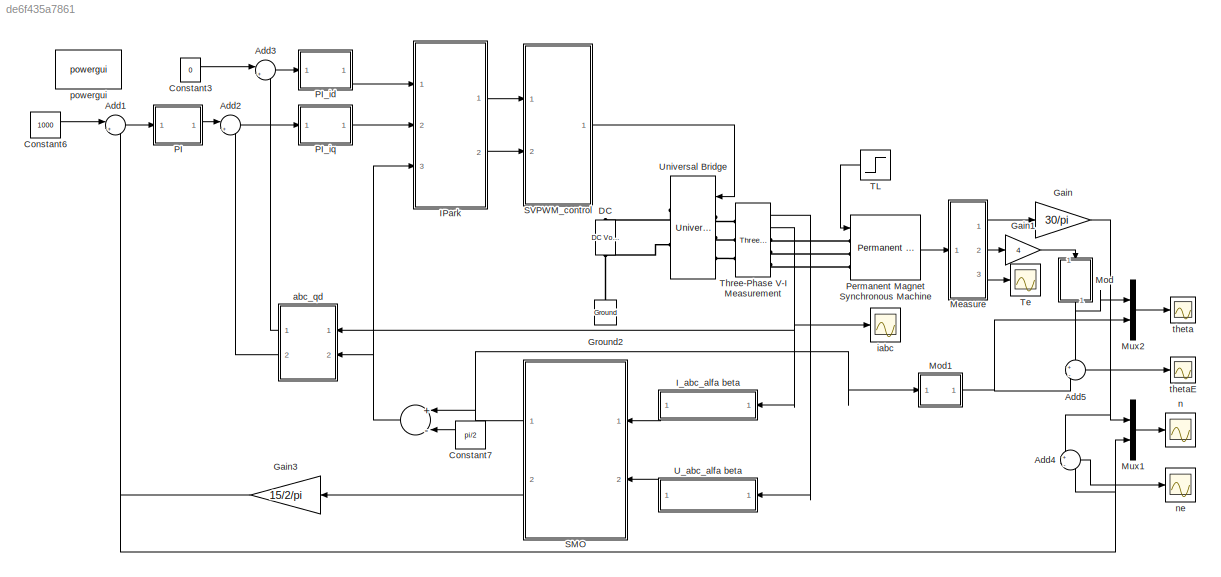
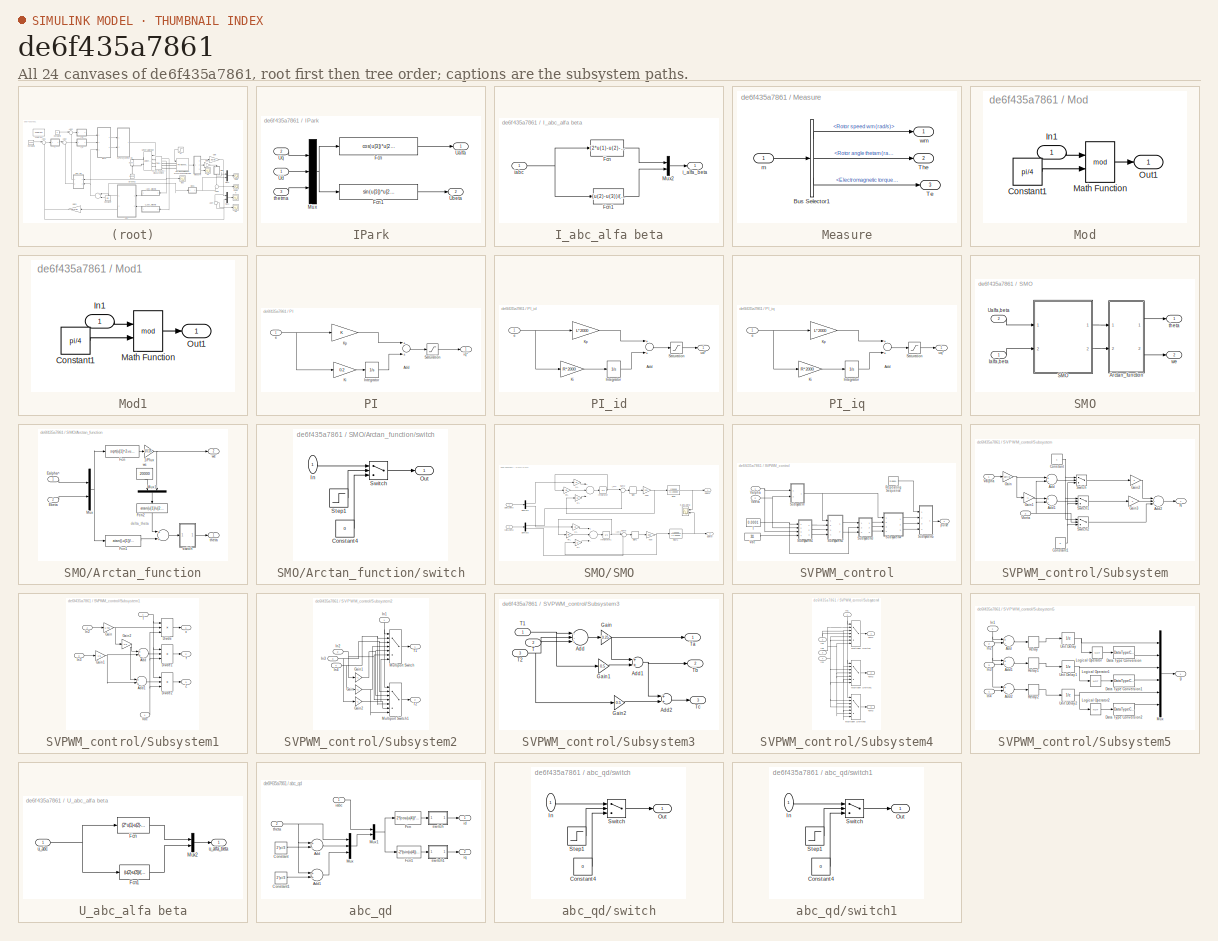
[diagram: thumbnail index - all 24 canvases of the model, root first then tree order]
MODEL slx_de6f435a7861
KIND model
CONFIG InitFcn = R = 2.8750;\nL = 8.5e-3;
BLOCK [Sum]   
  InputSameDT = off
  Inputs = +-
  OutDataTypeStr = Inherit: Inherit via internal rule
  Ports = [2, 1]
  SaturateOnIntegerOverflow = off
BLOCK [Sum] Add1
  IconShape = round
  InputSameDT = off
  Inputs = |+-
  OutDataTypeStr = Inherit: Inherit via internal rule
  Ports = [2, 1]
  SaturateOnIntegerOverflow = off
BLOCK [Sum] Add2
  IconShape = round
  InputSameDT = off
  Inputs = |+-
  OutDataTypeStr = Inherit: Inherit via internal rule
  Ports = [2, 1]
  SaturateOnIntegerOverflow = off
BLOCK [Sum] Add3
  IconShape = round
  InputSameDT = off
  Inputs = |+-
  OutDataTypeStr = Inherit: Inherit via internal rule
  Ports = [2, 1]
  SaturateOnIntegerOverflow = off
BLOCK [Sum] Add4
  IconShape = round
  InputSameDT = off
  Inputs = +|-
  OutDataTypeStr = Inherit: Inherit via internal rule
  Ports = [2, 1]
  SaturateOnIntegerOverflow = off
BLOCK [Sum] Add5
  IconShape = round
  InputSameDT = off
  Inputs = +|-
  OutDataTypeStr = Inherit: Inherit via internal rule
  Ports = [2, 1]
  SaturateOnIntegerOverflow = off
BLOCK [Constant] Constant3
  Value = 0
BLOCK [Constant] Constant6
  Value = 1000
BLOCK [Constant] Constant7
  Value = pi/2
BLOCK [Reference] DC   REF=powerlib/Electrical
Sources/DC Voltage Source
  Amplitude = 311
  Measurements = None
  Ports = [0, 0, 0, 0, 0, 1, 1]
  SourceBlock = powerlib/Electrical\nSources/DC Voltage Source
  SourceType = DC Voltage Source
BLOCK [Gain] Gain
  Gain = 30/pi
  OutDataTypeStr = Inherit: Inherit via internal rule
  ParamDataTypeStr = Inherit: Inherit via internal rule
  SaturateOnIntegerOverflow = off
BLOCK [Gain] Gain1
  Gain = 4
  OutDataTypeStr = Inherit: Inherit via internal rule
  ParamDataTypeStr = Inherit: Inherit via internal rule
  SaturateOnIntegerOverflow = off
BLOCK [Gain] Gain3
  Gain = 15/2/pi
  OutDataTypeStr = Inherit: Inherit via internal rule
  ParamDataTypeStr = Inherit: Inherit via internal rule
  SaturateOnIntegerOverflow = off
BLOCK [Reference] Ground2  REF=powerlib/Elements/Ground
  LConnTagsString = a
  Ports = [0, 0, 0, 0, 0, 1]
  SourceBlock = powerlib/Elements/Ground
  SourceType = Ground
BLOCK [SubSystem] IPark
  Ports = [3, 2]
  RequestExecContextInheritance = off
BLOCK [Fcn] IPark/Fcn
  Expr = cos(u[3])*u[2]-sin(u[3])*u[1]
BLOCK [Fcn] IPark/Fcn1
  Expr = sin(u[3])*u[2]+cos(u[3])*u[1]
BLOCK [Mux] IPark/Mux
  DisplayOption = bar
  Inputs = 3
  Ports = [3, 1]
BLOCK [Outport] IPark/Ualfa
  IconDisplay = Port number
BLOCK [Outport] IPark/Ubeta
  IconDisplay = Port number
  Port = 2
BLOCK [Inport] IPark/Ud
  IconDisplay = Port number
BLOCK [Inport] IPark/Uq
  IconDisplay = Port number
  Port = 2
BLOCK [Inport] IPark/thetma
  IconDisplay = Port number
  Port = 3
BLOCK [SubSystem] I_abc_alfa beta
  Ports = [1, 1]
  RequestExecContextInheritance = off
BLOCK [Fcn] I_abc_alfa beta/Fcn
  Expr = (2*u(1)-u(2)-u(3))/3
BLOCK [Fcn] I_abc_alfa beta/Fcn1
  Expr = (u(2)-u(3))/(3^(1/2))
BLOCK [Mux] I_abc_alfa beta/Mux2
  DisplayOption = bar
  Inputs = 2
  Ports = [2, 1]
BLOCK [Outport] I_abc_alfa beta/i_alfa_beta
  IconDisplay = Port number
BLOCK [Inport] I_abc_alfa beta/iabc
  IconDisplay = Port number
BLOCK [SubSystem] Measure
  Ports = [1, 3]
  RequestExecContextInheritance = off
BLOCK [BusSelector] Measure/Bus Selector1
  OutputSignals = Rotor speed wm (rad/s),Rotor angle thetam (rad),Electromagnetic torque Te (N*m)
  Ports = [1, 3]
BLOCK [Outport] Measure/Te
  IconDisplay = Port number
  Port = 3
BLOCK [Outport] Measure/The
  IconDisplay = Port number
  Port = 2
BLOCK [Inport] Measure/m
  IconDisplay = Port number
BLOCK [Outport] Measure/wm
  IconDisplay = Port number
BLOCK [SubSystem] Mod
  Ports = [1, 1]
  RequestExecContextInheritance = off
BLOCK [Constant] Mod/Constant1
  Value = pi/4
BLOCK [Inport] Mod/In1
  IconDisplay = Port number
BLOCK [Math] Mod/Math Function
  Operator = mod
  Ports = [2, 1]
BLOCK [Outport] Mod/Out1
  IconDisplay = Port number
BLOCK [SubSystem] Mod1
  Ports = [1, 1]
  RequestExecContextInheritance = off
BLOCK [Constant] Mod1/Constant1
  Value = pi/4
BLOCK [Inport] Mod1/In1
  IconDisplay = Port number
BLOCK [Math] Mod1/Math Function
  Operator = mod
  Ports = [2, 1]
BLOCK [Outport] Mod1/Out1
  IconDisplay = Port number
BLOCK [Mux] Mux1
  DisplayOption = bar
  Inputs = 2
  Ports = [2, 1]
BLOCK [Mux] Mux2
  DisplayOption = bar
  Inputs = 2
  Ports = [2, 1]
BLOCK [SubSystem] PI
  Ports = [1, 1]
  RequestExecContextInheritance = off
BLOCK [Sum] PI/Add
  InputSameDT = off
  OutDataTypeStr = Inherit: Inherit via internal rule
  Ports = [2, 1]
  SaturateOnIntegerOverflow = off
BLOCK [Integrator] PI/Integrator
  Ports = [1, 1]
BLOCK [Gain] PI/Ki
  Gain = 0.2
  OutDataTypeStr = Inherit: Inherit via internal rule
  ParamDataTypeStr = Inherit: Inherit via internal rule
  SaturateOnIntegerOverflow = off
BLOCK [Gain] PI/Kp
  OutDataTypeStr = Inherit: Inherit via internal rule
  ParamDataTypeStr = Inherit: Inherit via internal rule
  SaturateOnIntegerOverflow = off
BLOCK [Saturate] PI/Saturation
  InputPortMap = u0
  LowerLimit = -21
  Ports = [1, 1]
  UpperLimit = 21
BLOCK [Inport] PI/e
  IconDisplay = Port number
BLOCK [Outport] PI/iq*
  IconDisplay = Port number
BLOCK [SubSystem] PI_id
  Ports = [1, 1]
  RequestExecContextInheritance = off
BLOCK [Sum] PI_id/Add
  InputSameDT = off
  OutDataTypeStr = Inherit: Inherit via internal rule
  Ports = [2, 1]
  SaturateOnIntegerOverflow = off
BLOCK [Integrator] PI_id/Integrator
  Ports = [1, 1]
BLOCK [Gain] PI_id/Ki
  Gain = R*2000
  OutDataTypeStr = Inherit: Inherit via internal rule
  ParamDataTypeStr = Inherit: Inherit via internal rule
  SaturateOnIntegerOverflow = off
BLOCK [Gain] PI_id/Kp
  Gain = L*2000
  OutDataTypeStr = Inherit: Inherit via internal rule
  ParamDataTypeStr = Inherit: Inherit via internal rule
  SaturateOnIntegerOverflow = off
BLOCK [Saturate] PI_id/Saturation
  InputPortMap = u0
  LowerLimit = -350
  Ports = [1, 1]
  UpperLimit = 350
BLOCK [Inport] PI_id/e
  IconDisplay = Port number
BLOCK [Outport] PI_id/ud*
  IconDisplay = Port number
BLOCK [SubSystem] PI_iq
  Ports = [1, 1]
  RequestExecContextInheritance = off
BLOCK [Sum] PI_iq/Add
  InputSameDT = off
  OutDataTypeStr = Inherit: Inherit via internal rule
  Ports = [2, 1]
  SaturateOnIntegerOverflow = off
BLOCK [Integrator] PI_iq/Integrator
  Ports = [1, 1]
BLOCK [Gain] PI_iq/Ki
  Gain = R*2000
  OutDataTypeStr = Inherit: Inherit via internal rule
  ParamDataTypeStr = Inherit: Inherit via internal rule
  SaturateOnIntegerOverflow = off
BLOCK [Gain] PI_iq/Kp
  Gain = L*2000
  OutDataTypeStr = Inherit: Inherit via internal rule
  ParamDataTypeStr = Inherit: Inherit via internal rule
  SaturateOnIntegerOverflow = off
BLOCK [Saturate] PI_iq/Saturation
  InputPortMap = u0
  LowerLimit = -350
  Ports = [1, 1]
  UpperLimit = 350
BLOCK [Inport] PI_iq/e
  IconDisplay = Port number
BLOCK [Outport] PI_iq/uq*
  IconDisplay = Port number
BLOCK [Reference] Permanent Magnet Synchronous Machine  REF=powerlib/Machines/Permanent Magnet
Synchronous Machine
  Flat = 120
  Flux = 0.175
  FluxDistribution = Sinusoidal
  Inductance = 8.5e-3
  InitialConditions = [0,0, 0,0]
  InitialConditions5ph = [0 0 0 0 0 0]
  La = 0.000835
  MachineConstant = Flux linkage established by magnets (V.s)
  MeasurementBus = off
  Mechanical = [ 1e-3, 0,  4 ]
  MechanicalLoad = Torque Tm
  NbPhases = 3
  PolePairs = 4
  Ports = [1, 1, 0, 0, 0, 3]
  PresetModel = No
  RefAngle = 90 degrees behind phase A axis (modified Park)
  Resistance = 2.8750
  RotorType = Salient-pole
  ShowDetailedParameters = on
  SourceBlock = powerlib/Machines/Permanent Magnet\nSynchronous Machine
  SourceType = Permanent Magnet Synchronous Machine
  TorqueCst = 1.05
  TsBlock = -1
  TsPowergui = 0
  VoltageCst = 126.966
  dqInductances = [8.5e-3, 8.5e-3]
BLOCK [SubSystem] SMO
  Ports = [2, 2]
  RequestExecContextInheritance = off
BLOCK [SubSystem] SMO/Arctan_function
  Ports = [2, 2]
  RequestExecContextInheritance = off
BLOCK [Sum] SMO/Arctan_function/  
  InputSameDT = off
  OutDataTypeStr = Inherit: Inherit via internal rule
  Ports = [2, 1]
  SaturateOnIntegerOverflow = off
BLOCK [Gain] SMO/Arctan_function/1//Flux
  Gain = 1/0.175
  OutDataTypeStr = Inherit: Inherit via internal rule
  ParamDataTypeStr = Inherit: Inherit via internal rule
  SaturateOnIntegerOverflow = off
BLOCK [Inport] SMO/Arctan_function/Ealpha^
  IconDisplay = Port number
BLOCK [Inport] SMO/Arctan_function/Ebeta
  IconDisplay = Port number
  Port = 2
BLOCK [Fcn] SMO/Arctan_function/Fcn
  Expr = sqrt(u[1]^2+u[2]^2)
BLOCK [Fcn] SMO/Arctan_function/Fcn1
  Expr = atan((-u[1])/u[2])+(-u[2]+abs(u[2]))*pi/2/abs(u[2])
BLOCK [Fcn] SMO/Arctan_function/Fcn2
  Expr = atan(u[1]/u[2])
BLOCK [Mux] SMO/Arctan_function/Mux
  DisplayOption = bar
  Inputs = 2
  Ports = [2, 1]
BLOCK [Mux] SMO/Arctan_function/Mux1
  DisplayOption = bar
  Inputs = 2
  Ports = [2, 1]
BLOCK [SubSystem] SMO/Arctan_function/switch
  Ports = [1, 1]
  RequestExecContextInheritance = off
BLOCK [Constant] SMO/Arctan_function/switch/Constant4
  Value = 0
BLOCK [Inport] SMO/Arctan_function/switch/In
  IconDisplay = Port number
BLOCK [Outport] SMO/Arctan_function/switch/Out
  IconDisplay = Port number
BLOCK [Step] SMO/Arctan_function/switch/Step1
  SampleTime = 0
  Time = 0.001
BLOCK [Switch] SMO/Arctan_function/switch/Switch
  InputSameDT = off
  SaturateOnIntegerOverflow = off
  Threshold = 1
BLOCK [Outport] SMO/Arctan_function/theta
  IconDisplay = Port number
BLOCK [Constant] SMO/Arctan_function/wc
  Value = 20000
BLOCK [Outport] SMO/Arctan_function/we
  IconDisplay = Port number
  Port = 2
BLOCK [Inport] SMO/Ialfa,beta
  IconDisplay = Port number
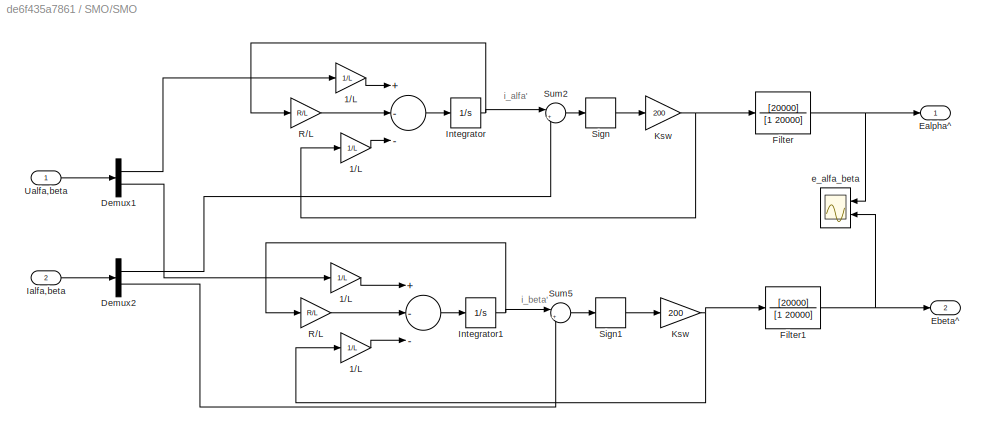
BLOCK [SubSystem] SMO/SMO
  Ports = [2, 2]
  RequestExecContextInheritance = off
BLOCK [Sum] SMO/SMO/ 
  InputSameDT = off
  Inputs = +--
  OutDataTypeStr = Inherit: Inherit via internal rule
  Ports = [3, 1]
  SaturateOnIntegerOverflow = off
BLOCK [Sum] SMO/SMO/   
  InputSameDT = off
  Inputs = +--
  OutDataTypeStr = Inherit: Inherit via internal rule
  Ports = [3, 1]
  SaturateOnIntegerOverflow = off
BLOCK [Gain] SMO/SMO/ 1//L
  Gain = 1/L
  OutDataTypeStr = Inherit: Inherit via internal rule
  ParamDataTypeStr = Inherit: Inherit via internal rule
  SaturateOnIntegerOverflow = off
BLOCK [Gain] SMO/SMO/ 1//L 
  Gain = 1/L
  OutDataTypeStr = Inherit: Inherit via internal rule
  ParamDataTypeStr = Inherit: Inherit via internal rule
  SaturateOnIntegerOverflow = off
BLOCK [Gain] SMO/SMO/1//L
  Gain = 1/L
  OutDataTypeStr = Inherit: Inherit via internal rule
  ParamDataTypeStr = Inherit: Inherit via internal rule
  SaturateOnIntegerOverflow = off
BLOCK [Gain] SMO/SMO/1//L 
  Gain = 1/L
  OutDataTypeStr = Inherit: Inherit via internal rule
  ParamDataTypeStr = Inherit: Inherit via internal rule
  SaturateOnIntegerOverflow = off
BLOCK [Demux] SMO/SMO/Demux1
  DisplayOption = bar
  Outputs = 2
  Ports = [1, 2]
BLOCK [Demux] SMO/SMO/Demux2
  DisplayOption = bar
  Outputs = 2
  Ports = [1, 2]
BLOCK [Outport] SMO/SMO/Ealpha^
  IconDisplay = Port number
BLOCK [Outport] SMO/SMO/Ebeta^
  IconDisplay = Port number
  Port = 2
BLOCK [TransferFcn] SMO/SMO/Filter
  Denominator = [1 20000]
  Numerator = [20000]
BLOCK [TransferFcn] SMO/SMO/Filter1
  Denominator = [1 20000]
  Numerator = [20000]
BLOCK [Inport] SMO/SMO/Ialfa,beta
  IconDisplay = Port number
  Port = 2
BLOCK [Integrator] SMO/SMO/Integrator
  Ports = [1, 1]
BLOCK [Integrator] SMO/SMO/Integrator1
  Ports = [1, 1]
BLOCK [Gain] SMO/SMO/Ksw
  Gain = 200
  OutDataTypeStr = Inherit: Inherit via internal rule
  ParamDataTypeStr = Inherit: Inherit via internal rule
  SaturateOnIntegerOverflow = off
BLOCK [Gain] SMO/SMO/Ksw 
  Gain = 200
  OutDataTypeStr = Inherit: Inherit via internal rule
  ParamDataTypeStr = Inherit: Inherit via internal rule
  SaturateOnIntegerOverflow = off
BLOCK [Gain] SMO/SMO/R//L
  Gain = R/L
  OutDataTypeStr = Inherit: Inherit via internal rule
  ParamDataTypeStr = Inherit: Inherit via internal rule
  SaturateOnIntegerOverflow = off
BLOCK [Gain] SMO/SMO/R//L 
  Gain = R/L
  OutDataTypeStr = Inherit: Inherit via internal rule
  ParamDataTypeStr = Inherit: Inherit via internal rule
  SaturateOnIntegerOverflow = off
BLOCK [Signum] SMO/SMO/Sign
  ZeroCross = off
BLOCK [Signum] SMO/SMO/Sign1
  ZeroCross = off
BLOCK [Sum] SMO/SMO/Sum2
  IconShape = round
  InputSameDT = off
  Inputs = |+-
  OutDataTypeStr = Inherit: Inherit via internal rule
  Ports = [2, 1]
  SaturateOnIntegerOverflow = off
BLOCK [Sum] SMO/SMO/Sum5
  IconShape = round
  InputSameDT = off
  Inputs = |+-
  OutDataTypeStr = Inherit: Inherit via internal rule
  Ports = [2, 1]
  SaturateOnIntegerOverflow = off
BLOCK [Inport] SMO/SMO/Ualfa,beta
  IconDisplay = Port number
BLOCK [Scope] SMO/SMO/e_alfa_beta
  DataFormat = Structure
  Floating = off
  LimitDataPoints = off
  NumInputPorts = 2
  Ports = [2]
  SampleTime = 0
  SaveName = ScopeData14
  ShowLegends = off
  TimeRange = 0.06
  YMax = 95~-40
  YMin = -5~-125
  ZoomMode = xonly
BLOCK [Inport] SMO/Ualfa,beta
  IconDisplay = Port number
  Port = 2
BLOCK [Outport] SMO/theta
  IconDisplay = Port number
BLOCK [Outport] SMO/we
  IconDisplay = Port number
  Port = 2
BLOCK [SubSystem] SVPWM_control
  Ports = [2, 1]
  RequestExecContextInheritance = off
BLOCK [Reference] SVPWM_control/Repeating Sequence  REF=simulink/Sources/Repeating
Sequence
  Ports = [0, 1]
  SourceBlock = simulink/Sources/Repeating\nSequence
  SourceType = Repeating table
  rep_seq_t = [0 0.0001 0.0002]
  rep_seq_y = [0 0.0001 0]
BLOCK [SubSystem] SVPWM_control/Subsystem
  Ports = [2, 1]
  RequestExecContextInheritance = off
BLOCK [Sum] SVPWM_control/Subsystem/Add
  InputSameDT = off
  Inputs = +-
  OutDataTypeStr = Inherit: Inherit via internal rule
  Ports = [2, 1]
  SaturateOnIntegerOverflow = off
BLOCK [Sum] SVPWM_control/Subsystem/Add1
  InputSameDT = off
  Inputs = +-
  OutDataTypeStr = Inherit: Inherit via internal rule
  Ports = [2, 1]
  SaturateOnIntegerOverflow = off
BLOCK [Sum] SVPWM_control/Subsystem/Add2
  InputSameDT = off
  Inputs = +++
  OutDataTypeStr = Inherit: Inherit via internal rule
  Ports = [3, 1]
  SaturateOnIntegerOverflow = off
BLOCK [Constant] SVPWM_control/Subsystem/Constant
BLOCK [Constant] SVPWM_control/Subsystem/Constant1
  Value = 0
BLOCK [Gain] SVPWM_control/Subsystem/Gain
  Gain = sqrt(3)
  OutDataTypeStr = Inherit: Inherit via internal rule
  ParamDataTypeStr = Inherit: Inherit via internal rule
  SaturateOnIntegerOverflow = off
BLOCK [Gain] SVPWM_control/Subsystem/Gain1
  Gain = -1
  OutDataTypeStr = Inherit: Inherit via internal rule
  ParamDataTypeStr = Inherit: Inherit via internal rule
  SaturateOnIntegerOverflow = off
BLOCK [Gain] SVPWM_control/Subsystem/Gain2
  Gain = 2
  OutDataTypeStr = Inherit: Inherit via internal rule
  ParamDataTypeStr = Inherit: Inherit via internal rule
  SaturateOnIntegerOverflow = off
BLOCK [Gain] SVPWM_control/Subsystem/Gain3
  Gain = 4
  OutDataTypeStr = Inherit: Inherit via internal rule
  ParamDataTypeStr = Inherit: Inherit via internal rule
  SaturateOnIntegerOverflow = off
BLOCK [Outport] SVPWM_control/Subsystem/N
  IconDisplay = Port number
BLOCK [Switch] SVPWM_control/Subsystem/Switch
  Criteria = u2 > Threshold
  InputSameDT = off
  SaturateOnIntegerOverflow = off
BLOCK [Switch] SVPWM_control/Subsystem/Switch1
  Criteria = u2 > Threshold
  InputSameDT = off
  SaturateOnIntegerOverflow = off
BLOCK [Switch] SVPWM_control/Subsystem/Switch2
  Criteria = u2 > Threshold
  InputSameDT = off
  SaturateOnIntegerOverflow = off
BLOCK [Inport] SVPWM_control/Subsystem/Valpha
  IconDisplay = Port number
BLOCK [Inport] SVPWM_control/Subsystem/Vbeta
  IconDisplay = Port number
  Port = 2
BLOCK [SubSystem] SVPWM_control/Subsystem1
  Ports = [4, 3]
  RequestExecContextInheritance = off
BLOCK [Sum] SVPWM_control/Subsystem1/Add
  InputSameDT = off
  OutDataTypeStr = Inherit: Inherit via internal rule
  Ports = [2, 1]
  SaturateOnIntegerOverflow = off
BLOCK [Sum] SVPWM_control/Subsystem1/Add1
  InputSameDT = off
  Inputs = +-
  OutDataTypeStr = Inherit: Inherit via internal rule
  Ports = [2, 1]
  SaturateOnIntegerOverflow = off
BLOCK [Product] SVPWM_control/Subsystem1/Divide
  InputSameDT = off
  Inputs = **/
  OutDataTypeStr = Inherit: Inherit via internal rule
  Ports = [3, 1]
  RndMeth = Floor
  SaturateOnIntegerOverflow = off
BLOCK [Product] SVPWM_control/Subsystem1/Divide1
  InputSameDT = off
  Inputs = **/
  OutDataTypeStr = Inherit: Inherit via internal rule
  Ports = [3, 1]
  RndMeth = Floor
  SaturateOnIntegerOverflow = off
BLOCK [Product] SVPWM_control/Subsystem1/Divide2
  InputSameDT = off
  Inputs = **/
  OutDataTypeStr = Inherit: Inherit via internal rule
  Ports = [3, 1]
  RndMeth = Floor
  SaturateOnIntegerOverflow = off
BLOCK [Gain] SVPWM_control/Subsystem1/Gain
  Gain = 1.732
  OutDataTypeStr = Inherit: Inherit via internal rule
  ParamDataTypeStr = Inherit: Inherit via internal rule
  SaturateOnIntegerOverflow = off
BLOCK [Gain] SVPWM_control/Subsystem1/Gain1
  Gain = 1.5
  OutDataTypeStr = Inherit: Inherit via internal rule
  ParamDataTypeStr = Inherit: Inherit via internal rule
  SaturateOnIntegerOverflow = off
BLOCK [Gain] SVPWM_control/Subsystem1/Gain2
  Gain = 0.5
  OutDataTypeStr = Inherit: Inherit via internal rule
  ParamDataTypeStr = Inherit: Inherit via internal rule
  SaturateOnIntegerOverflow = off
BLOCK [Inport] SVPWM_control/Subsystem1/In2
  IconDisplay = Port number
  Port = 2
BLOCK [Inport] SVPWM_control/Subsystem1/In3
  IconDisplay = Port number
  Port = 3
BLOCK [Inport] SVPWM_control/Subsystem1/T
  IconDisplay = Port number
BLOCK [Inport] SVPWM_control/Subsystem1/Vdc
  IconDisplay = Port number
  Port = 4
BLOCK [Outport] SVPWM_control/Subsystem1/Y
  IconDisplay = Port number
  Port = 2
BLOCK [Outport] SVPWM_control/Subsystem1/Z
  IconDisplay = Port number
  Port = 3
BLOCK [Outport] SVPWM_control/Subsystem1/x
  IconDisplay = Port number
BLOCK [SubSystem] SVPWM_control/Subsystem2
  Ports = [4, 2]
  RequestExecContextInheritance = off
BLOCK [Gain] SVPWM_control/Subsystem2/Gain
  Gain = -1
  OutDataTypeStr = Inherit: Inherit via internal rule
  ParamDataTypeStr = Inherit: Inherit via internal rule
  SaturateOnIntegerOverflow = off
BLOCK [Gain] SVPWM_control/Subsystem2/Gain1
  Gain = -1
  OutDataTypeStr = Inherit: Inherit via internal rule
  ParamDataTypeStr = Inherit: Inherit via internal rule
  SaturateOnIntegerOverflow = off
BLOCK [Gain] SVPWM_control/Subsystem2/Gain2
  Gain = -1
  OutDataTypeStr = Inherit: Inherit via internal rule
  ParamDataTypeStr = Inherit: Inherit via internal rule
  SaturateOnIntegerOverflow = off
BLOCK [Inport] SVPWM_control/Subsystem2/In1
  IconDisplay = Port number
BLOCK [Inport] SVPWM_control/Subsystem2/In2
  IconDisplay = Port number
  Port = 2
BLOCK [Inport] SVPWM_control/Subsystem2/In3
  IconDisplay = Port number
  Port = 3
BLOCK [Inport] SVPWM_control/Subsystem2/In4
  IconDisplay = Port number
  Port = 4
BLOCK [MultiPortSwitch] SVPWM_control/Subsystem2/Multiport Switch
  InputSameDT = off
  Inputs = 6
  Ports = [7, 1]
  SaturateOnIntegerOverflow = off
BLOCK [MultiPortSwitch] SVPWM_control/Subsystem2/Multiport Switch1
  InputSameDT = off
  Inputs = 6
  Ports = [7, 1]
  SaturateOnIntegerOverflow = off
BLOCK [Outport] SVPWM_control/Subsystem2/T1
  IconDisplay = Port number
BLOCK [Outport] SVPWM_control/Subsystem2/T2
  IconDisplay = Port number
  Port = 2
BLOCK [SubSystem] SVPWM_control/Subsystem3
  Ports = [3, 3]
  RequestExecContextInheritance = off
BLOCK [Sum] SVPWM_control/Subsystem3/Add
  InputSameDT = off
  Inputs = --+
  OutDataTypeStr = Inherit: Inherit via internal rule
  Ports = [3, 1]
  SaturateOnIntegerOverflow = off
BLOCK [Sum] SVPWM_control/Subsystem3/Add1
  InputSameDT = off
  OutDataTypeStr = Inherit: Inherit via internal rule
  Ports = [2, 1]
  SaturateOnIntegerOverflow = off
BLOCK [Sum] SVPWM_control/Subsystem3/Add2
  InputSameDT = off
  OutDataTypeStr = Inherit: Inherit via internal rule
  Ports = [2, 1]
  SaturateOnIntegerOverflow = off
BLOCK [Gain] SVPWM_control/Subsystem3/Gain
  Gain = 0.25
  OutDataTypeStr = Inherit: Inherit via internal rule
  ParamDataTypeStr = Inherit: Inherit via internal rule
  SaturateOnIntegerOverflow = off
BLOCK [Gain] SVPWM_control/Subsystem3/Gain1
  Gain = 0.5
  OutDataTypeStr = Inherit: Inherit via internal rule
  ParamDataTypeStr = Inherit: Inherit via internal rule
  SaturateOnIntegerOverflow = off
BLOCK [Gain] SVPWM_control/Subsystem3/Gain2
  Gain = 0.5
  OutDataTypeStr = Inherit: Inherit via internal rule
  ParamDataTypeStr = Inherit: Inherit via internal rule
  SaturateOnIntegerOverflow = off
BLOCK [Inport] SVPWM_control/Subsystem3/T
  IconDisplay = Port number
  Port = 2
BLOCK [Inport] SVPWM_control/Subsystem3/T1
  IconDisplay = Port number
BLOCK [Inport] SVPWM_control/Subsystem3/T2
  IconDisplay = Port number
  Port = 3
BLOCK [Outport] SVPWM_control/Subsystem3/Ta
  IconDisplay = Port number
BLOCK [Outport] SVPWM_control/Subsystem3/Tb
  IconDisplay = Port number
  Port = 2
BLOCK [Outport] SVPWM_control/Subsystem3/Tc
  IconDisplay = Port number
  Port = 3
BLOCK [SubSystem] SVPWM_control/Subsystem4
  Ports = [4, 3]
  RequestExecContextInheritance = off
BLOCK [Inport] SVPWM_control/Subsystem4/In1
  IconDisplay = Port number
BLOCK [Inport] SVPWM_control/Subsystem4/In2
  IconDisplay = Port number
  Port = 2
BLOCK [Inport] SVPWM_control/Subsystem4/In3
  IconDisplay = Port number
  Port = 3
BLOCK [Inport] SVPWM_control/Subsystem4/In4
  IconDisplay = Port number
  Port = 4
BLOCK [MultiPortSwitch] SVPWM_control/Subsystem4/Multiport Switch
  InputSameDT = off
  Inputs = 6
  Ports = [7, 1]
  SaturateOnIntegerOverflow = off
BLOCK [MultiPortSwitch] SVPWM_control/Subsystem4/Multiport Switch1
  InputSameDT = off
  Inputs = 6
  Ports = [7, 1]
  SaturateOnIntegerOverflow = off
BLOCK [MultiPortSwitch] SVPWM_control/Subsystem4/Multiport Switch2
  InputSameDT = off
  Inputs = 6
  Ports = [7, 1]
  SaturateOnIntegerOverflow = off
BLOCK [Outport] SVPWM_control/Subsystem4/Tcm1
  IconDisplay = Port number
BLOCK [Outport] SVPWM_control/Subsystem4/Tcm2
  IconDisplay = Port number
  Port = 2
BLOCK [Outport] SVPWM_control/Subsystem4/Tcm3
  IconDisplay = Port number
  Port = 3
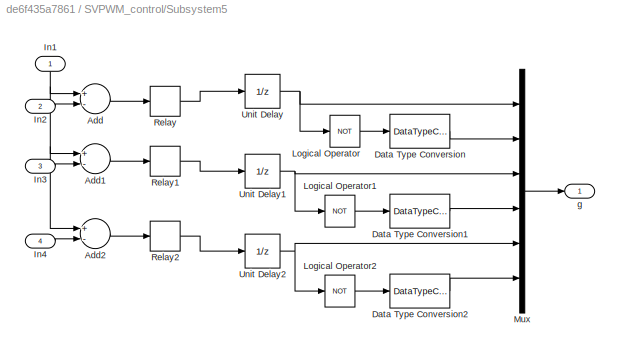
BLOCK [SubSystem] SVPWM_control/Subsystem5
  Ports = [4, 1]
  RequestExecContextInheritance = off
BLOCK [Sum] SVPWM_control/Subsystem5/Add
  InputSameDT = off
  Inputs = +-
  OutDataTypeStr = Inherit: Inherit via internal rule
  Ports = [2, 1]
  SaturateOnIntegerOverflow = off
BLOCK [Sum] SVPWM_control/Subsystem5/Add1
  InputSameDT = off
  Inputs = +-
  OutDataTypeStr = Inherit: Inherit via internal rule
  Ports = [2, 1]
  SaturateOnIntegerOverflow = off
BLOCK [Sum] SVPWM_control/Subsystem5/Add2
  InputSameDT = off
  Inputs = +-
  OutDataTypeStr = Inherit: Inherit via internal rule
  Ports = [2, 1]
  SaturateOnIntegerOverflow = off
BLOCK [DataTypeConversion] SVPWM_control/Subsystem5/Data Type Conversion
  OutDataTypeStr = double
  RndMeth = Floor
  SaturateOnIntegerOverflow = off
BLOCK [DataTypeConversion] SVPWM_control/Subsystem5/Data Type Conversion1
  OutDataTypeStr = double
  RndMeth = Floor
  SaturateOnIntegerOverflow = off
BLOCK [DataTypeConversion] SVPWM_control/Subsystem5/Data Type Conversion2
  OutDataTypeStr = double
  RndMeth = Floor
  SaturateOnIntegerOverflow = off
BLOCK [Inport] SVPWM_control/Subsystem5/In1
  IconDisplay = Port number
BLOCK [Inport] SVPWM_control/Subsystem5/In2
  IconDisplay = Port number
  Port = 2
BLOCK [Inport] SVPWM_control/Subsystem5/In3
  IconDisplay = Port number
  Port = 3
BLOCK [Inport] SVPWM_control/Subsystem5/In4
  IconDisplay = Port number
  Port = 4
BLOCK [Logic] SVPWM_control/Subsystem5/Logical Operator
  AllPortsSameDT = off
  Operator = NOT
  OutDataTypeStr = boolean
  Ports = [1, 1]
BLOCK [Logic] SVPWM_control/Subsystem5/Logical Operator1
  AllPortsSameDT = off
  Operator = NOT
  OutDataTypeStr = boolean
  Ports = [1, 1]
BLOCK [Logic] SVPWM_control/Subsystem5/Logical Operator2
  AllPortsSameDT = off
  Operator = NOT
  OutDataTypeStr = boolean
  Ports = [1, 1]
BLOCK [Mux] SVPWM_control/Subsystem5/Mux
  DisplayOption = bar
  Inputs = 6
  Ports = [6, 1]
BLOCK [Relay] SVPWM_control/Subsystem5/Relay
  OffSwitchValue = -eps
BLOCK [Relay] SVPWM_control/Subsystem5/Relay1
  OffSwitchValue = -eps
BLOCK [Relay] SVPWM_control/Subsystem5/Relay2
  OffSwitchValue = -eps
BLOCK [UnitDelay] SVPWM_control/Subsystem5/Unit Delay
  SampleTime = -1
BLOCK [UnitDelay] SVPWM_control/Subsystem5/Unit Delay1
  SampleTime = -1
BLOCK [UnitDelay] SVPWM_control/Subsystem5/Unit Delay2
  SampleTime = -1
BLOCK [Outport] SVPWM_control/Subsystem5/g
  IconDisplay = Port number
BLOCK [Constant] SVPWM_control/T
  Value = 0.0001
BLOCK [Inport] SVPWM_control/Valpha
  IconDisplay = Port number
BLOCK [Inport] SVPWM_control/Vbeta
  IconDisplay = Port number
  Port = 2
BLOCK [Constant] SVPWM_control/Vdc
  Value = 311
BLOCK [Outport] SVPWM_control/pulse
  IconDisplay = Port number
BLOCK [Step] TL
  After = 0
  SampleTime = 0
  Time = 0.05
BLOCK [Scope] Te
  DataFormat = StructureWithTime
  Floating = off
  LimitDataPoints = off
  NumInputPorts = 1
  Ports = [1]
  SampleTime = 0
  SaveName = Te
  SaveToWorkspace = on
  ShowLegends = off
  YMax = 3.25
  YMin = -2
BLOCK [Reference] Three-Phase V-I Measurement  REF=powerlib/Measurements/Three-Phase
V-I Measurement
  CurrentMeasurement = yes
  Ipu = off
  LabelI = Iabc
  LabelV = Vabc
  OutputType = Complex
  PSBequivalent = 0
  Pbase = 100e6
  PhasorSimulation = off
  Ports = [0, 2, 0, 0, 0, 3, 3]
  SetLabelI = off
  SetLabelV = off
  SourceBlock = powerlib/Measurements/Three-Phase\nV-I Measurement
  SourceType = Three-Phase VI Measurement
  Vbase = 500e3
  VoltageMeasurement = phase-to-ground
  Vpu = off
  VpuLL = off
BLOCK [SubSystem] U_abc_alfa beta
  Ports = [1, 1]
  RequestExecContextInheritance = off
BLOCK [Fcn] U_abc_alfa beta/Fcn
  Expr = (2*u(1)-u(2)-u(3))/3
BLOCK [Fcn] U_abc_alfa beta/Fcn1
  Expr = (u(2)-u(3))/(3^(1/2))
BLOCK [Mux] U_abc_alfa beta/Mux2
  DisplayOption = bar
  Inputs = 2
  Ports = [2, 1]
BLOCK [Inport] U_abc_alfa beta/u_abc
  IconDisplay = Port number
BLOCK [Outport] U_abc_alfa beta/u_alfa_beta
  IconDisplay = Port number
BLOCK [Reference] Universal Bridge  REF=powerlib/Power
Electronics/Universal Bridge
  Arms = 3
  Device = IGBT / Diodes
  ForwardVoltage = 0
  ForwardVoltages = [  0  0  ]
  GTOparameters = [ 10e-6 , 20e-6 ]
  IGBTparameters = [ 1e-6 , 2e-6 ]
  Lon = 0
  Measurements = None
  Measurements_2 = None
  Ports = [1, 0, 0, 0, 0, 3, 2]
  Ron = 1e-3
  SnubberCapacitance = inf
  SnubberResistance = 1e5
  SourceBlock = powerlib/Power\nElectronics/Universal Bridge
  SourceType = Universal Bridge
  converterType = Rectifier
BLOCK [SubSystem] abc_qd
  Ports = [2, 2]
  RequestExecContextInheritance = off
BLOCK [Sum] abc_qd/Add
  InputSameDT = off
  Inputs = +-
  OutDataTypeStr = Inherit: Inherit via internal rule
  Ports = [2, 1]
  SaturateOnIntegerOverflow = off
BLOCK [Sum] abc_qd/Add1
  InputSameDT = off
  OutDataTypeStr = Inherit: Inherit via internal rule
  Ports = [2, 1]
  SaturateOnIntegerOverflow = off
BLOCK [Constant] abc_qd/Constant
  Value = 2*pi/3
BLOCK [Constant] abc_qd/Constant1
  Value = 2*pi/3
BLOCK [Fcn] abc_qd/Fcn
  Expr = 2*(cos(u(4))*u(1)+cos(u(5))*u(2)+cos(u(6))*u(3))/3
BLOCK [Fcn] abc_qd/Fcn1
  Expr = -2*(sin(u(4))*u(1)+sin(u(5))*u(2)+sin(u(6))*u(3))/3
BLOCK [Mux] abc_qd/Mux
  DisplayOption = bar
  Inputs = 3
  Ports = [3, 1]
BLOCK [Mux] abc_qd/Mux1
  DisplayOption = bar
  Inputs = 2
  Ports = [2, 1]
BLOCK [Inport] abc_qd/iabc
  IconDisplay = Port number
BLOCK [Outport] abc_qd/id
  IconDisplay = Port number
BLOCK [Outport] abc_qd/iq
  IconDisplay = Port number
  Port = 2
BLOCK [SubSystem] abc_qd/switch
  Ports = [1, 1]
  RequestExecContextInheritance = off
BLOCK [Constant] abc_qd/switch/Constant4
  Value = 0
BLOCK [Inport] abc_qd/switch/In
  IconDisplay = Port number
BLOCK [Outport] abc_qd/switch/Out
  IconDisplay = Port number
BLOCK [Step] abc_qd/switch/Step1
  SampleTime = 0
  Time = 0.001
BLOCK [Switch] abc_qd/switch/Switch
  InputSameDT = off
  SaturateOnIntegerOverflow = off
  Threshold = 1
BLOCK [SubSystem] abc_qd/switch1
  Ports = [1, 1]
  RequestExecContextInheritance = off
BLOCK [Constant] abc_qd/switch1/Constant4
  Value = 0
BLOCK [Inport] abc_qd/switch1/In
  IconDisplay = Port number
BLOCK [Outport] abc_qd/switch1/Out
  IconDisplay = Port number
BLOCK [Step] abc_qd/switch1/Step1
  SampleTime = 0
  Time = 0.001
BLOCK [Switch] abc_qd/switch1/Switch
  InputSameDT = off
  SaturateOnIntegerOverflow = off
  Threshold = 1
BLOCK [Inport] abc_qd/theta
  IconDisplay = Port number
  Port = 2
BLOCK [Scope] iabc
  DataFormat = StructureWithTime
  Floating = off
  LimitDataPoints = off
  NumInputPorts = 1
  Ports = [1]
  SampleTime = 0
  SaveName = iabc
  SaveToWorkspace = on
  ShowLegends = off
  YMax = 20
  YMin = -15
  ZoomMode = yonly
BLOCK [Scope] n
  DataFormat = StructureWithTime
  Floating = off
  LimitDataPoints = off
  NumInputPorts = 1
  Ports = [1]
  SampleTime = 0
  SaveName = wm
  SaveToWorkspace = on
  ShowLegends = off
  YMax = 700
  YMin = -100
  ZoomMode = yonly
BLOCK [Scope] ne
  DataFormat = StructureWithTime
  Floating = off
  LimitDataPoints = off
  NumInputPorts = 1
  Ports = [1]
  SampleTime = 0
  SaveName = wme
  SaveToWorkspace = on
  ShowLegends = off
  YMax = 20
  YMin = -15
  ZoomMode = yonly
BLOCK [Reference] powergui  REF=powerlib/powergui
  DisableRonSwitches = off
  DisableSnubberDevices = off
  DisableVfSwitches = off
  DisplayEquations = off
  DisplayStyle = 1
  EnableUseOfTLC = off
  ErrMax = 1e-4
  Frange = [0:2:500]
  FreqAxis = off
  FunctionMessages = off
  HookPort = off
  Interpol = off
  Iterations = 50
  MaxFrequency = 1000
  Pbase = 100e6
  Ports = []
  Priority = 1
  ResistiveCurrentMeasurement = off
  RestoreLinks = warning
  RmsSteady = 1
  SPID = off
  SampleTime = 50e-6
  ShowGrid = off
  SolverType = Tustin/Backward Euler (TBE)
  SourceBlock = powerlib/powergui
  SourceType = PSB option menu block
  StartTime = 0.0
  SwTol = 0
  Ts = 100
  UnitsV = kV
  UnitsW = MW
  UserDataPersistent = on
  Xlog = on
  Ylog = off
  ZoomFFT = off
  cycles = 1
  display = off
  echomessages = off
  frequency = 60
  frequencyindice = 0
  frequencyindicesteady = 1
  fundamental = 60
  methode = off
  save = off
  structure = 0
  variable = ZData
  x0status = blocks
BLOCK [Scope] theta
  DataFormat = StructureWithTime
  Floating = off
  LimitDataPoints = off
  NumInputPorts = 1
  Ports = [1]
  SampleTime = 0
  SaveName = The
  SaveToWorkspace = on
  ShowLegends = off
  TimeRange = 0.1
  YMax = 20
  YMin = -0.0127013
  ZoomMode = yonly
BLOCK [Scope] thetaE
  DataFormat = StructureWithTime
  Floating = off
  LimitDataPoints = off
  NumInputPorts = 1
  Ports = [1]
  SampleTime = 0
  SaveName = Thee
  SaveToWorkspace = on
  ShowLegends = off
  TimeRange = 0.1
  YMax = 0.5
  YMin = -3.5
  ZoomMode = yonly
ANNOTATION SMO/Arctan_function: delta_theta
ANNOTATION SMO/SMO: i_alfa'
ANNOTATION SMO/SMO: i_beta'
NET   :1 -> IPark:3, abc_qd:2
LINE Add1:1 -> PI:1
LINE Add2:1 -> PI_iq:1
LINE Add3:1 -> PI_id:1
LINE Add4:1 -> ne:1
LINE Add5:1 -> thetaE:1
LINE Constant3:1 -> Add3:1
LINE Constant6:1 -> Add1:1
LINE Constant7:1 ->   :2
LINE Gain1:1 -> Mod:1
NET Gain3:1 -> Add1:2, Add4:2, Mux1:2
NET Gain:1 -> Add4:1, Mux1:1
LINE IPark/Fcn1:1 -> IPark/Ubeta:1
LINE IPark/Fcn:1 -> IPark/Ualfa:1
NET IPark/Mux:1 -> IPark/Fcn1:1, IPark/Fcn:1
LINE IPark/Ud:1 -> IPark/Mux:2
LINE IPark/Uq:1 -> IPark/Mux:1
LINE IPark/thetma:1 -> IPark/Mux:3
LINE IPark:1 -> SVPWM_control:1
LINE IPark:2 -> SVPWM_control:2
LINE I_abc_alfa beta/Fcn1:1 -> I_abc_alfa beta/Mux2:2
LINE I_abc_alfa beta/Fcn:1 -> I_abc_alfa beta/Mux2:1
LINE I_abc_alfa beta/Mux2:1 -> I_abc_alfa beta/i_alfa_beta:1
NET I_abc_alfa beta/iabc:1 -> I_abc_alfa beta/Fcn1:1, I_abc_alfa beta/Fcn:1
LINE I_abc_alfa beta:1 -> SMO:1
LINE Measure/Bus Selector1:1 -> Measure/wm:1
LINE Measure/Bus Selector1:2 -> Measure/The:1
LINE Measure/Bus Selector1:3 -> Measure/Te:1
LINE Measure/m:1 -> Measure/Bus Selector1:1
LINE Measure:1 -> Gain:1
LINE Measure:2 -> Gain1:1
LINE Measure:3 -> Te:1
LINE Mod/Constant1:1 -> Mod/Math Function:2
LINE Mod/In1:1 -> Mod/Math Function:1
LINE Mod/Math Function:1 -> Mod/Out1:1
LINE Mod1/Constant1:1 -> Mod1/Math Function:2
LINE Mod1/In1:1 -> Mod1/Math Function:1
LINE Mod1/Math Function:1 -> Mod1/Out1:1
NET Mod1:1 -> Add5:2, Mux2:2
NET Mod:1 -> Add5:1, Mux2:1
LINE Mux1:1 -> n:1
LINE Mux2:1 -> theta:1
LINE PI/Add:1 -> PI/Saturation:1
LINE PI/Integrator:1 -> PI/Add:2
LINE PI/Ki:1 -> PI/Integrator:1
LINE PI/Kp:1 -> PI/Add:1
LINE PI/Saturation:1 -> PI/iq*:1
NET PI/e:1 -> PI/Ki:1, PI/Kp:1
LINE PI:1 -> Add2:1
LINE PI_id/Add:1 -> PI_id/Saturation:1
LINE PI_id/Integrator:1 -> PI_id/Add:2
LINE PI_id/Ki:1 -> PI_id/Integrator:1
LINE PI_id/Kp:1 -> PI_id/Add:1
LINE PI_id/Saturation:1 -> PI_id/ud*:1
NET PI_id/e:1 -> PI_id/Ki:1, PI_id/Kp:1
LINE PI_id:1 -> IPark:1
LINE PI_iq/Add:1 -> PI_iq/Saturation:1
LINE PI_iq/Integrator:1 -> PI_iq/Add:2
LINE PI_iq/Ki:1 -> PI_iq/Integrator:1
LINE PI_iq/Kp:1 -> PI_iq/Add:1
LINE PI_iq/Saturation:1 -> PI_iq/uq*:1
NET PI_iq/e:1 -> PI_iq/Ki:1, PI_iq/Kp:1
LINE PI_iq:1 -> IPark:2
LINE Permanent Magnet Synchronous Machine:1 -> Measure:1
LINE SMO/Arctan_function/  :1 -> SMO/Arctan_function/switch:1
NET SMO/Arctan_function/1//Flux:1 -> SMO/Arctan_function/Mux1:2, SMO/Arctan_function/we:1
LINE SMO/Arctan_function/Ealpha^:1 -> SMO/Arctan_function/Mux:1
LINE SMO/Arctan_function/Ebeta:1 -> SMO/Arctan_function/Mux:2
LINE SMO/Arctan_function/Fcn1:1 -> SMO/Arctan_function/  :2
LINE SMO/Arctan_function/Fcn2:1 -> SMO/Arctan_function/  :1
LINE SMO/Arctan_function/Fcn:1 -> SMO/Arctan_function/1//Flux:1
LINE SMO/Arctan_function/Mux1:1 -> SMO/Arctan_function/Fcn2:1
NET SMO/Arctan_function/Mux:1 -> SMO/Arctan_function/Fcn1:1, SMO/Arctan_function/Fcn:1
LINE SMO/Arctan_function/switch/Constant4:1 -> SMO/Arctan_function/switch/Switch:3
LINE SMO/Arctan_function/switch/In:1 -> SMO/Arctan_function/switch/Switch:1
LINE SMO/Arctan_function/switch/Step1:1 -> SMO/Arctan_function/switch/Switch:2
LINE SMO/Arctan_function/switch/Switch:1 -> SMO/Arctan_function/switch/Out:1
LINE SMO/Arctan_function/switch:1 -> SMO/Arctan_function/theta:1
LINE SMO/Arctan_function/wc:1 -> SMO/Arctan_function/Mux1:1
LINE SMO/Arctan_function:1 -> SMO/theta:1
LINE SMO/Arctan_function:2 -> SMO/we:1
LINE SMO/Ialfa,beta:1 -> SMO/SMO:2
LINE SMO/SMO/   :1 -> SMO/SMO/Integrator1:1
LINE SMO/SMO/ 1//L :1 -> SMO/SMO/   :3
LINE SMO/SMO/ 1//L:1 -> SMO/SMO/   :1
LINE SMO/SMO/ :1 -> SMO/SMO/Integrator:1
LINE SMO/SMO/1//L :1 -> SMO/SMO/ :3
LINE SMO/SMO/1//L:1 -> SMO/SMO/ :1
LINE SMO/SMO/Demux1:1 -> SMO/SMO/1//L:1
LINE SMO/SMO/Demux1:2 -> SMO/SMO/ 1//L:1
LINE SMO/SMO/Demux2:1 -> SMO/SMO/Sum2:2
LINE SMO/SMO/Demux2:2 -> SMO/SMO/Sum5:2
NET SMO/SMO/Filter1:1 -> SMO/SMO/Ebeta^:1, SMO/SMO/e_alfa_beta:2
NET SMO/SMO/Filter:1 -> SMO/SMO/Ealpha^:1, SMO/SMO/e_alfa_beta:1
LINE SMO/SMO/Ialfa,beta:1 -> SMO/SMO/Demux2:1
NET SMO/SMO/Integrator1:1 -> SMO/SMO/R//L :1, SMO/SMO/Sum5:1
NET SMO/SMO/Integrator:1 -> SMO/SMO/R//L:1, SMO/SMO/Sum2:1
NET SMO/SMO/Ksw :1 -> SMO/SMO/ 1//L :1, SMO/SMO/Filter1:1
NET SMO/SMO/Ksw:1 -> SMO/SMO/1//L :1, SMO/SMO/Filter:1
LINE SMO/SMO/R//L :1 -> SMO/SMO/   :2
LINE SMO/SMO/R//L:1 -> SMO/SMO/ :2
LINE SMO/SMO/Sign1:1 -> SMO/SMO/Ksw :1
LINE SMO/SMO/Sign:1 -> SMO/SMO/Ksw:1
LINE SMO/SMO/Sum2:1 -> SMO/SMO/Sign:1
LINE SMO/SMO/Sum5:1 -> SMO/SMO/Sign1:1
LINE SMO/SMO/Ualfa,beta:1 -> SMO/SMO/Demux1:1
LINE SMO/SMO:1 -> SMO/Arctan_function:1
LINE SMO/SMO:2 -> SMO/Arctan_function:2
LINE SMO/Ualfa,beta:1 -> SMO/SMO:1
NET SMO:1 ->   :1, Mod1:1
LINE SMO:2 -> Gain3:1
LINE SVPWM_control/Repeating Sequence:1 -> SVPWM_control/Subsystem5:1
LINE SVPWM_control/Subsystem/Add1:1 -> SVPWM_control/Subsystem/Switch1:2
LINE SVPWM_control/Subsystem/Add2:1 -> SVPWM_control/Subsystem/N:1
LINE SVPWM_control/Subsystem/Add:1 -> SVPWM_control/Subsystem/Switch:2
NET SVPWM_control/Subsystem/Constant1:1 -> SVPWM_control/Subsystem/Switch1:3, SVPWM_control/Subsystem/Switch2:3, SVPWM_control/Subsystem/Switch:3
NET SVPWM_control/Subsystem/Constant:1 -> SVPWM_control/Subsystem/Switch1:1, SVPWM_control/Subsystem/Switch2:1, SVPWM_control/Subsystem/Switch:1
LINE SVPWM_control/Subsystem/Gain1:1 -> SVPWM_control/Subsystem/Add1:1
LINE SVPWM_control/Subsystem/Gain2:1 -> SVPWM_control/Subsystem/Add2:1
LINE SVPWM_control/Subsystem/Gain3:1 -> SVPWM_control/Subsystem/Add2:2
NET SVPWM_control/Subsystem/Gain:1 -> SVPWM_control/Subsystem/Add:1, SVPWM_control/Subsystem/Gain1:1
LINE SVPWM_control/Subsystem/Switch1:1 -> SVPWM_control/Subsystem/Gain3:1
LINE SVPWM_control/Subsystem/Switch2:1 -> SVPWM_control/Subsystem/Add2:3
LINE SVPWM_control/Subsystem/Switch:1 -> SVPWM_control/Subsystem/Gain2:1
LINE SVPWM_control/Subsystem/Valpha:1 -> SVPWM_control/Subsystem/Gain:1
NET SVPWM_control/Subsystem/Vbeta:1 -> SVPWM_control/Subsystem/Add1:2, SVPWM_control/Subsystem/Add:2, SVPWM_control/Subsystem/Switch2:2
LINE SVPWM_control/Subsystem1/Add1:1 -> SVPWM_control/Subsystem1/Divide2:2
LINE SVPWM_control/Subsystem1/Add:1 -> SVPWM_control/Subsystem1/Divide1:2
LINE SVPWM_control/Subsystem1/Divide1:1 -> SVPWM_control/Subsystem1/Y:1
LINE SVPWM_control/Subsystem1/Divide2:1 -> SVPWM_control/Subsystem1/Z:1
LINE SVPWM_control/Subsystem1/Divide:1 -> SVPWM_control/Subsystem1/x:1
NET SVPWM_control/Subsystem1/Gain1:1 -> SVPWM_control/Subsystem1/Add1:2, SVPWM_control/Subsystem1/Add:2
NET SVPWM_control/Subsystem1/Gain2:1 -> SVPWM_control/Subsystem1/Add1:1, SVPWM_control/Subsystem1/Add:1
NET SVPWM_control/Subsystem1/Gain:1 -> SVPWM_control/Subsystem1/Divide:2, SVPWM_control/Subsystem1/Gain2:1
LINE SVPWM_control/Subsystem1/In2:1 -> SVPWM_control/Subsystem1/Gain:1
LINE SVPWM_control/Subsystem1/In3:1 -> SVPWM_control/Subsystem1/Gain1:1
NET SVPWM_control/Subsystem1/T:1 -> SVPWM_control/Subsystem1/Divide1:1, SVPWM_control/Subsystem1/Divide2:1, SVPWM_control/Subsystem1/Divide:1
NET SVPWM_control/Subsystem1/Vdc:1 -> SVPWM_control/Subsystem1/Divide1:3, SVPWM_control/Subsystem1/Divide2:3, SVPWM_control/Subsystem1/Divide:3
LINE SVPWM_control/Subsystem1:1 -> SVPWM_control/Subsystem2:2
LINE SVPWM_control/Subsystem1:2 -> SVPWM_control/Subsystem2:3
LINE SVPWM_control/Subsystem1:3 -> SVPWM_control/Subsystem2:4
NET SVPWM_control/Subsystem2/Gain1:1 -> SVPWM_control/Subsystem2/Multiport Switch1:3, SVPWM_control/Subsystem2/Multiport Switch:5
NET SVPWM_control/Subsystem2/Gain2:1 -> SVPWM_control/Subsystem2/Multiport Switch1:6, SVPWM_control/Subsystem2/Multiport Switch:7
NET SVPWM_control/Subsystem2/Gain:1 -> SVPWM_control/Subsystem2/Multiport Switch1:7, SVPWM_control/Subsystem2/Multiport Switch:4
NET SVPWM_control/Subsystem2/In1:1 -> SVPWM_control/Subsystem2/Multiport Switch1:1, SVPWM_control/Subsystem2/Multiport Switch:1
NET SVPWM_control/Subsystem2/In2:1 -> SVPWM_control/Subsystem2/Gain1:1, SVPWM_control/Subsystem2/Multiport Switch1:4, SVPWM_control/Subsystem2/Multiport Switch:6
NET SVPWM_control/Subsystem2/In3:1 -> SVPWM_control/Subsystem2/Gain2:1, SVPWM_control/Subsystem2/Multiport Switch1:2, SVPWM_control/Subsystem2/Multiport Switch:3
NET SVPWM_control/Subsystem2/In4:1 -> SVPWM_control/Subsystem2/Gain:1, SVPWM_control/Subsystem2/Multiport Switch1:5, SVPWM_control/Subsystem2/Multiport Switch:2
LINE SVPWM_control/Subsystem2/Multiport Switch1:1 -> SVPWM_control/Subsystem2/T2:1
LINE SVPWM_control/Subsystem2/Multiport Switch:1 -> SVPWM_control/Subsystem2/T1:1
LINE SVPWM_control/Subsystem2:1 -> SVPWM_control/Subsystem3:1
LINE SVPWM_control/Subsystem2:2 -> SVPWM_control/Subsystem3:3
NET SVPWM_control/Subsystem3/Add1:1 -> SVPWM_control/Subsystem3/Add2:1, SVPWM_control/Subsystem3/Tb:1
LINE SVPWM_control/Subsystem3/Add2:1 -> SVPWM_control/Subsystem3/Tc:1
LINE SVPWM_control/Subsystem3/Add:1 -> SVPWM_control/Subsystem3/Gain:1
LINE SVPWM_control/Subsystem3/Gain1:1 -> SVPWM_control/Subsystem3/Add1:2
LINE SVPWM_control/Subsystem3/Gain2:1 -> SVPWM_control/Subsystem3/Add2:2
NET SVPWM_control/Subsystem3/Gain:1 -> SVPWM_control/Subsystem3/Add1:1, SVPWM_control/Subsystem3/Ta:1
NET SVPWM_control/Subsystem3/T1:1 -> SVPWM_control/Subsystem3/Add:1, SVPWM_control/Subsystem3/Gain1:1
NET SVPWM_control/Subsystem3/T2:1 -> SVPWM_control/Subsystem3/Add:2, SVPWM_control/Subsystem3/Gain2:1
LINE SVPWM_control/Subsystem3/T:1 -> SVPWM_control/Subsystem3/Add:3
LINE SVPWM_control/Subsystem3:1 -> SVPWM_control/Subsystem4:2
LINE SVPWM_control/Subsystem3:2 -> SVPWM_control/Subsystem4:3
LINE SVPWM_control/Subsystem3:3 -> SVPWM_control/Subsystem4:4
NET SVPWM_control/Subsystem4/In1:1 -> SVPWM_control/Subsystem4/Multiport Switch1:1, SVPWM_control/Subsystem4/Multiport Switch2:1, SVPWM_control/Subsystem4/Multiport Switch:1
NET SVPWM_control/Subsystem4/In2:1 -> SVPWM_control/Subsystem4/Multiport Switch1:2, SVPWM_control/Subsystem4/Multiport Switch1:6, SVPWM_control/Subsystem4/Multiport Switch2:5, SVPWM_control/Subsystem4/Multiport Switch2:7, SVPWM_control/Subsystem4/Multiport Switch:3, SVPWM_control/Subsystem4/Multiport Switch:4
NET SVPWM_control/Subsystem4/In3:1 -> SVPWM_control/Subsystem4/Multiport Switch1:4, SVPWM_control/Subsystem4/Multiport Switch1:5, SVPWM_control/Subsystem4/Multiport Switch2:3, SVPWM_control/Subsystem4/Multiport Switch2:6, SVPWM_control/Subsystem4/Multiport Switch:2, SVPWM_control/Subsystem4/Multiport Switch:7
NET SVPWM_control/Subsystem4/In4:1 -> SVPWM_control/Subsystem4/Multiport Switch1:3, SVPWM_control/Subsystem4/Multiport Switch1:7, SVPWM_control/Subsystem4/Multiport Switch2:2, SVPWM_control/Subsystem4/Multiport Switch2:4, SVPWM_control/Subsystem4/Multiport Switch:5, SVPWM_control/Subsystem4/Multiport Switch:6
LINE SVPWM_control/Subsystem4/Multiport Switch1:1 -> SVPWM_control/Subsystem4/Tcm2:1
LINE SVPWM_control/Subsystem4/Multiport Switch2:1 -> SVPWM_control/Subsystem4/Tcm3:1
LINE SVPWM_control/Subsystem4/Multiport Switch:1 -> SVPWM_control/Subsystem4/Tcm1:1
LINE SVPWM_control/Subsystem4:1 -> SVPWM_control/Subsystem5:2
LINE SVPWM_control/Subsystem4:2 -> SVPWM_control/Subsystem5:3
LINE SVPWM_control/Subsystem4:3 -> SVPWM_control/Subsystem5:4
LINE SVPWM_control/Subsystem5/Add1:1 -> SVPWM_control/Subsystem5/Relay1:1
LINE SVPWM_control/Subsystem5/Add2:1 -> SVPWM_control/Subsystem5/Relay2:1
LINE SVPWM_control/Subsystem5/Add:1 -> SVPWM_control/Subsystem5/Relay:1
LINE SVPWM_control/Subsystem5/Data Type Conversion1:1 -> SVPWM_control/Subsystem5/Mux:4
LINE SVPWM_control/Subsystem5/Data Type Conversion2:1 -> SVPWM_control/Subsystem5/Mux:6
LINE SVPWM_control/Subsystem5/Data Type Conversion:1 -> SVPWM_control/Subsystem5/Mux:2
NET SVPWM_control/Subsystem5/In1:1 -> SVPWM_control/Subsystem5/Add1:1, SVPWM_control/Subsystem5/Add2:1, SVPWM_control/Subsystem5/Add:1
LINE SVPWM_control/Subsystem5/In2:1 -> SVPWM_control/Subsystem5/Add:2
LINE SVPWM_control/Subsystem5/In3:1 -> SVPWM_control/Subsystem5/Add1:2
LINE SVPWM_control/Subsystem5/In4:1 -> SVPWM_control/Subsystem5/Add2:2
LINE SVPWM_control/Subsystem5/Logical Operator1:1 -> SVPWM_control/Subsystem5/Data Type Conversion1:1
LINE SVPWM_control/Subsystem5/Logical Operator2:1 -> SVPWM_control/Subsystem5/Data Type Conversion2:1
LINE SVPWM_control/Subsystem5/Logical Operator:1 -> SVPWM_control/Subsystem5/Data Type Conversion:1
LINE SVPWM_control/Subsystem5/Mux:1 -> SVPWM_control/Subsystem5/g:1
LINE SVPWM_control/Subsystem5/Relay1:1 -> SVPWM_control/Subsystem5/Unit Delay1:1
LINE SVPWM_control/Subsystem5/Relay2:1 -> SVPWM_control/Subsystem5/Unit Delay2:1
LINE SVPWM_control/Subsystem5/Relay:1 -> SVPWM_control/Subsystem5/Unit Delay:1
NET SVPWM_control/Subsystem5/Unit Delay1:1 -> SVPWM_control/Subsystem5/Logical Operator1:1, SVPWM_control/Subsystem5/Mux:3
NET SVPWM_control/Subsystem5/Unit Delay2:1 -> SVPWM_control/Subsystem5/Logical Operator2:1, SVPWM_control/Subsystem5/Mux:5
NET SVPWM_control/Subsystem5/Unit Delay:1 -> SVPWM_control/Subsystem5/Logical Operator:1, SVPWM_control/Subsystem5/Mux:1
LINE SVPWM_control/Subsystem5:1 -> SVPWM_control/pulse:1
NET SVPWM_control/Subsystem:1 -> SVPWM_control/Subsystem2:1, SVPWM_control/Subsystem4:1
NET SVPWM_control/T:1 -> SVPWM_control/Subsystem1:1, SVPWM_control/Subsystem3:2
NET SVPWM_control/Valpha:1 -> SVPWM_control/Subsystem1:3, SVPWM_control/Subsystem:1
NET SVPWM_control/Vbeta:1 -> SVPWM_control/Subsystem1:2, SVPWM_control/Subsystem:2
LINE SVPWM_control/Vdc:1 -> SVPWM_control/Subsystem1:4
LINE SVPWM_control:1 -> Universal Bridge:1
LINE TL:1 -> Permanent Magnet Synchronous Machine:1
LINE Three-Phase V-I Measurement:1 -> U_abc_alfa beta:1
NET Three-Phase V-I Measurement:2 -> I_abc_alfa beta:1, abc_qd:1, iabc:1
LINE U_abc_alfa beta/Fcn1:1 -> U_abc_alfa beta/Mux2:2
LINE U_abc_alfa beta/Fcn:1 -> U_abc_alfa beta/Mux2:1
LINE U_abc_alfa beta/Mux2:1 -> U_abc_alfa beta/u_alfa_beta:1
NET U_abc_alfa beta/u_abc:1 -> U_abc_alfa beta/Fcn1:1, U_abc_alfa beta/Fcn:1
LINE U_abc_alfa beta:1 -> SMO:2
LINE abc_qd/Add1:1 -> abc_qd/Mux:3
LINE abc_qd/Add:1 -> abc_qd/Mux:2
LINE abc_qd/Constant1:1 -> abc_qd/Add1:2
LINE abc_qd/Constant:1 -> abc_qd/Add:2
LINE abc_qd/Fcn1:1 -> abc_qd/switch1:1
LINE abc_qd/Fcn:1 -> abc_qd/switch:1
NET abc_qd/Mux1:1 -> abc_qd/Fcn1:1, abc_qd/Fcn:1
LINE abc_qd/Mux:1 -> abc_qd/Mux1:2
LINE abc_qd/iabc:1 -> abc_qd/Mux1:1
LINE abc_qd/switch/Constant4:1 -> abc_qd/switch/Switch:3
LINE abc_qd/switch/In:1 -> abc_qd/switch/Switch:1
LINE abc_qd/switch/Step1:1 -> abc_qd/switch/Switch:2
LINE abc_qd/switch/Switch:1 -> abc_qd/switch/Out:1
LINE abc_qd/switch1/Constant4:1 -> abc_qd/switch1/Switch:3
LINE abc_qd/switch1/In:1 -> abc_qd/switch1/Switch:1
LINE abc_qd/switch1/Step1:1 -> abc_qd/switch1/Switch:2
LINE abc_qd/switch1/Switch:1 -> abc_qd/switch1/Out:1
LINE abc_qd/switch1:1 -> abc_qd/iq:1
LINE abc_qd/switch:1 -> abc_qd/id:1
NET abc_qd/theta:1 -> abc_qd/Add1:1, abc_qd/Add:1, abc_qd/Mux:1
LINE abc_qd:1 -> Add3:2
LINE abc_qd:2 -> Add2:2
PNET net1: DC :LConn1 -- Ground2:LConn1 -- Universal Bridge:RConn2
PLINE DC :RConn1 -- Universal Bridge:RConn1
PLINE Permanent Magnet Synchronous Machine:LConn1 -- Three-Phase V-I Measurement:RConn1
PLINE Permanent Magnet Synchronous Machine:LConn2 -- Three-Phase V-I Measurement:RConn2
PLINE Permanent Magnet Synchronous Machine:LConn3 -- Three-Phase V-I Measurement:RConn3
PLINE Three-Phase V-I Measurement:LConn1 -- Universal Bridge:LConn1
PLINE Three-Phase V-I Measurement:LConn2 -- Universal Bridge:LConn2
PLINE Three-Phase V-I Measurement:LConn3 -- Universal Bridge:LConn3
note: NET lines group one-source signal fan-out (src -> all destinations, sorted); 1:1 wires keep LINE; PNET lines group multi-terminal physical nets as a canonical sorted terminal list (undirected conserving connections); 2-terminal nets keep the pairwise PLINE form
